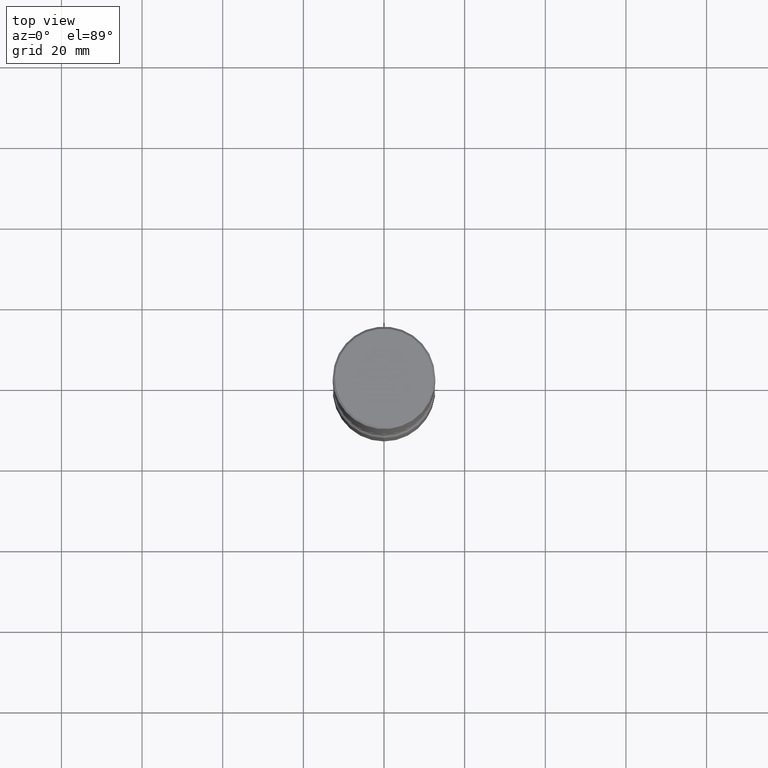
[diagram: clean part render]
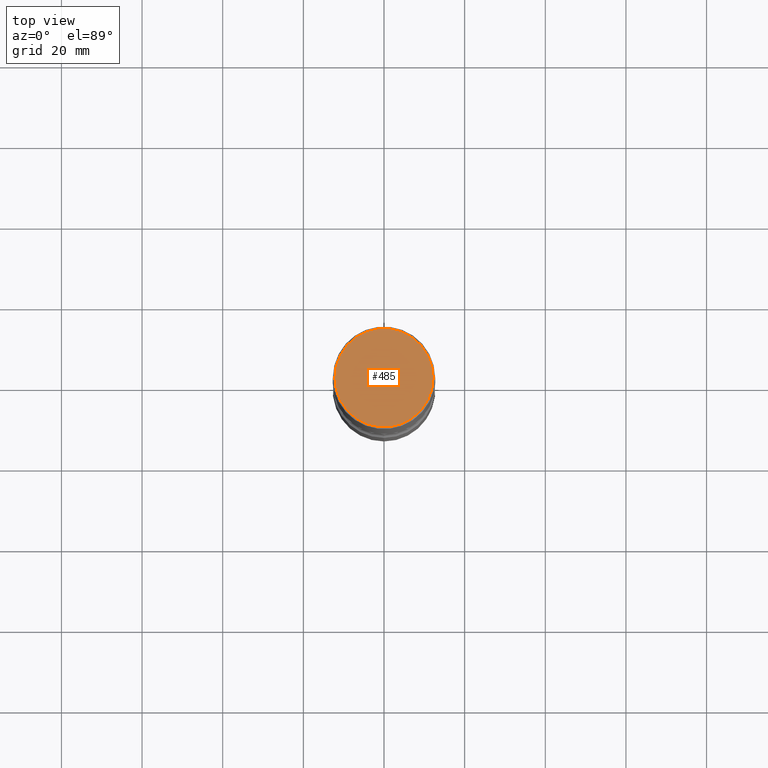
[diagram: same view with one face highlighted and labeled with its STEP entity id]
A machine part, top view. The second image highlights one B-rep face of the part: STEP entity #485.
In plain terms, the highlighted planar face has unit normal (0, -0, -1).
Its self-contained STEP definition (entity closure, byte-faithful):
#2 = DIRECTION ( 'NONE',  ( -2.445468806185136597E-29, 3.491481338843145583E-15, 1.000000000000000000 ) ) ;
#15 = VERTEX_POINT ( 'NONE', #41 ) ;
#30 = EDGE_LOOP ( 'NONE', ( #309, #196 ) ) ;
#31 = CARTESIAN_POINT ( 'NONE',  ( 0.4799999999999995937, -3.396558832296480127E-15, 1.280553747032483033E-17 ) ) ;
#33 = EDGE_CURVE ( 'NONE', #15, #282, #149, .T. ) ;
#41 = CARTESIAN_POINT ( 'NONE',  ( -0.4799999999999995937, 3.386736898677836436E-15, 1.280553747027767124E-17 ) ) ;
#103 = EDGE_CURVE ( 'NONE', #282, #15, #165, .T. ) ;
#149 = CIRCLE ( 'NONE', #429, 0.4799999999999995937 ) ;
#165 = CIRCLE ( 'NONE', #343, 0.4799999999999995937 ) ;
#196 = ORIENTED_EDGE ( 'NONE', *, *, #103, .T. ) ;
#204 = PLANE ( 'NONE',  #422 ) ;
#237 = DIRECTION ( 'NONE',  ( 2.438088387897960049E-29, -3.491481338843145188E-15, -1.000000000000000000 ) ) ;
#238 = DIRECTION ( 'NONE',  ( 1.000000000000000000, -6.982962677686266711E-15, 4.876036955247133327E-29 ) ) ;
#241 = DIRECTION ( 'NONE',  ( 1.000000000000000000, -6.982962677686266711E-15, 4.876036955247133327E-29 ) ) ;
#282 = VERTEX_POINT ( 'NONE', #31 ) ;
#284 = DIRECTION ( 'NONE',  ( -2.445468806185136597E-29, 3.491481338843145583E-15, 1.000000000000000000 ) ) ;
#309 = ORIENTED_EDGE ( 'NONE', *, *, #33, .T. ) ;
#343 = AXIS2_PLACEMENT_3D ( 'NONE', #354, #284, #241 ) ;
#347 = CARTESIAN_POINT ( 'NONE',  ( -3.131554243005659264E-46, 4.471029511141341874E-32, 1.280553747030123384E-17 ) ) ;
#354 = CARTESIAN_POINT ( 'NONE',  ( -3.131554243005659264E-46, 4.471029511141341874E-32, 1.280553747030123384E-17 ) ) ;
#359 = DIRECTION ( 'NONE',  ( -1.000000000000000000, 6.982962677686265922E-15, -4.876176775795935793E-29 ) ) ;
#361 = CARTESIAN_POINT ( 'NONE',  ( 3.351822085289404787E-15, 0.4799999999999995937, -1.669508273909557867E-15 ) ) ;
#422 = AXIS2_PLACEMENT_3D ( 'NONE', #361, #237, #359 ) ;
#429 = AXIS2_PLACEMENT_3D ( 'NONE', #347, #2, #238 ) ;
#472 = FACE_OUTER_BOUND ( 'NONE', #30, .T. ) ;
#485 = ADVANCED_FACE ( 'NONE', ( #472 ), #204, .F. ) ;